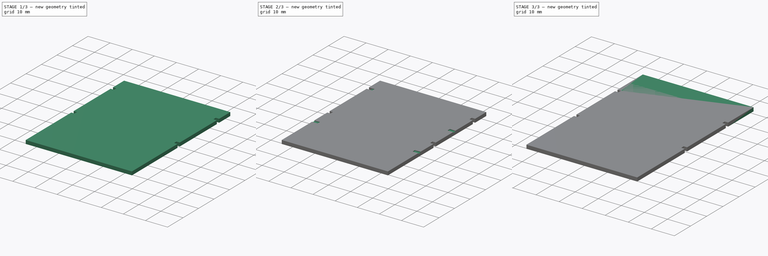
[diagram: build sequence overview — one tinted view per stage of 3, left to right]
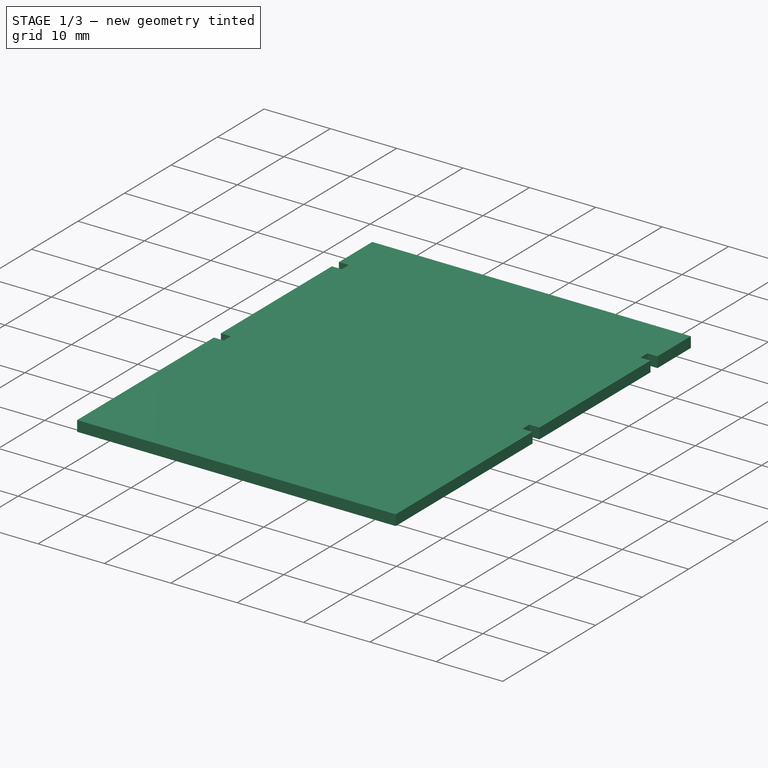
[diagram: stage 1 of 3 — iso view after this stage's code; geometry added in this stage tinted green]
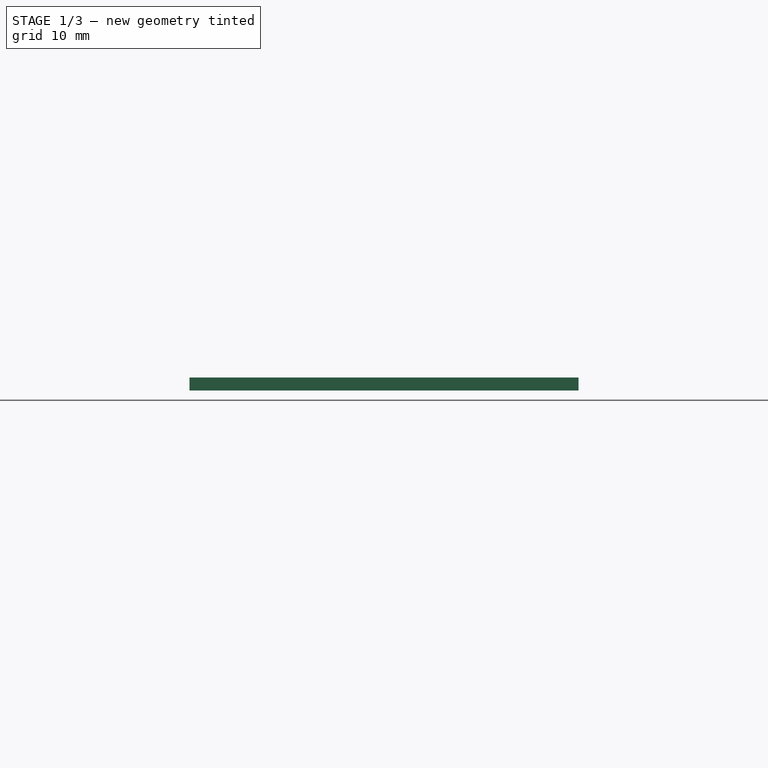
[diagram: stage 1 of 3 — front view after this stage's code; geometry added in this stage tinted green]
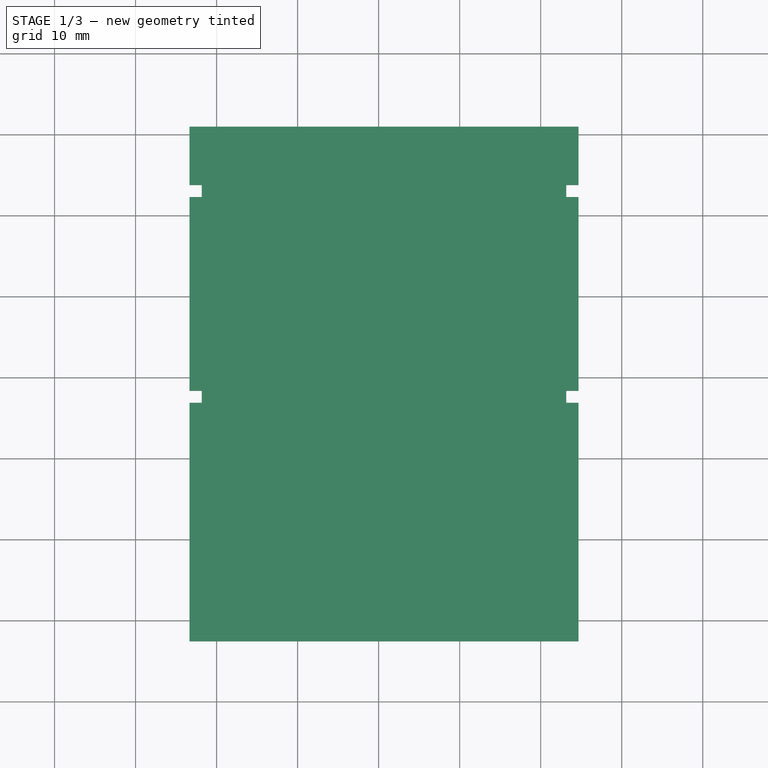
[diagram: stage 1 of 3 — top view after this stage's code; geometry added in this stage tinted green]
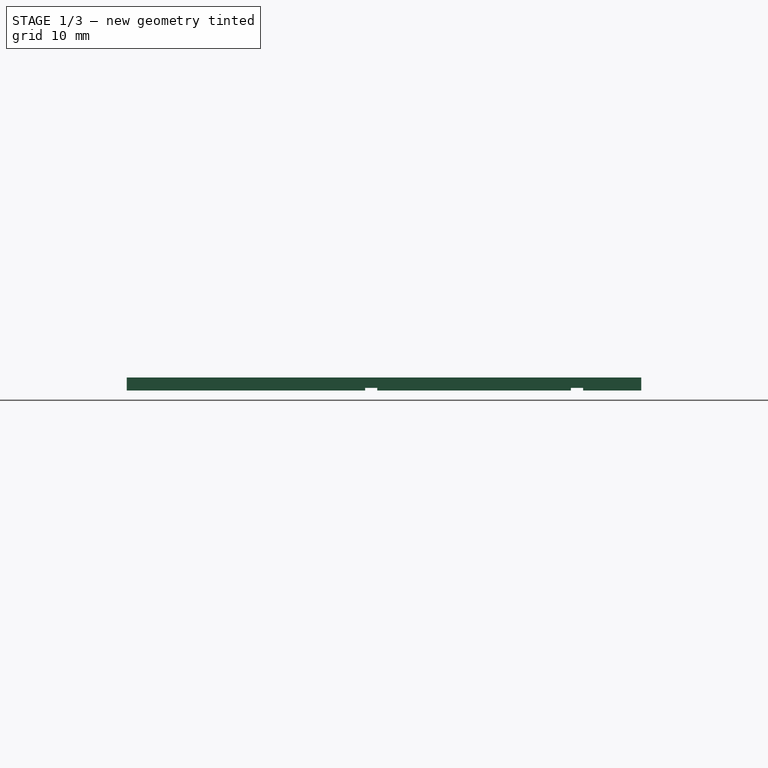
[diagram: stage 1 of 3 — right view after this stage's code; geometry added in this stage tinted green]
FCSTD DOCUMENT  (FreeCAD 0.20R29603 (Git))
Label: cartridge_pcb_spec
License: All rights reserved
LicenseURL: http://en.wikipedia.org/wiki/All_rights_reserved
objects: Sketcher::SketchObject×5, PartDesign::Pocket×3, PartDesign::Pad×2, PartDesign::Body×2, Spreadsheet::Sheet×1
note: 17 computed .brp shape members not serialized (recipe doc carries the construction recipe); baked Part::Feature solids carry a one-line shape summary decoded from their .brp

FEATURE [Spreadsheet::Sheet] Spreadsheet  label="Measurements"
  cells = A1=Alias; B1=Calculated; C1=Actual if available (from source in native units); D1=Source; A2=pcb_height_short; B2(pcb_height_short)==63.5 mm; C2=Inferred: 63.5mm; D2=PCjr Technical Reference, B-22; A3=pcb_height_long; B3(pcb_height_long)==72 mm; C3=Actual: 72mm; D3=PCjr Technical Reference, 2-107; A4=pcb_width; B4(pcb_width)==48 mm; C4=Actual: 48mm; D4=PCjr Technical Reference, 2-107; A6=pcb_bottom_left_datum_x; B6(pcb_bottom_left_datum_x)==2.1 "; C6=Actual: 2.1" (based on C10 = 2.1"); D6=PCjr Technical Reference, B-22; A7=pcb_bottom_left_datum_y; B7(pcb_bottom_left_datum_y)==0.1 "; C7=Inferred: 0.1" (based on the grid); D7=PCjr Technical Reference, B-22; A9=pcb_cutout_y; B9(pcb_cutout_y)==1.5 mm; C9=Inferred (1.5mm); D9=Physical Measurements; A10=pcb_cutout_x; B10(pcb_cutout_x)==1.5 mm; C10=Inferred (1.5mm); D10=Physical Measurements; A12=pcb_lower_cutout_datum_y; B12(pcb_lower_cutout_datum_y)==1.1 "; C12=Actual: 1.1" (based on B10 vertically); D12=PCjr Technical Reference, B-22; A13=pcb_upper_cutout_datum_y; B13(pcb_upper_cutout_datum_y)==2.1 "; C13=Actual: 2.1" (based on C10 vertically); D13=PCjr Technical Reference, B-22; A15=pcb_thickness; B15(pcb_thickness)==1.6 mm; C15=Inferred (1.6mm); D15=Industry standard; A17=top_keepout_width; B17(top_keepout_width)==0.1 "; C17=Inferred (.1"); D17=Physical Measurements; A18=top_keepout_front_y; B18(top_keepout_front_y)==0.8 "; C18=Inferred (.8"); D18=Physical Measurements; A20=bottom_long_keepout_length; B20(bottom_long_keepout_length)==0.2 "; C20=Inferred (.2"); D20=Physical Measurements
FEATURE [Sketcher::SketchObject] Sketch  label="Reference_Short_PCB"
  FullyConstrained = true
  MapMode = 5
  Support = -> [XY_Plane]
  expr: Constraints[0] = <<Measurements>>.pcb_bottom_left_datum_x
  expr: Constraints[1] = <<Measurements>>.pcb_bottom_left_datum_y
  expr: Constraints[32] = <<Measurements>>.pcb_cutout_y
  expr: Constraints[3] = <<Measurements>>.pcb_height_short
  expr: Constraints[4] = <<Measurements>>.pcb_lower_cutout_datum_y
  expr: Constraints[59] = <<Measurements>>.pcb_cutout_y
  expr: Constraints[6] = <<Measurements>>.pcb_upper_cutout_datum_y
  expr: Constraints[89] = <<Measurements>>.pcb_width
  sketch-geometry (42):
    g0: GeomPoint X=-53.34 Y=-2.54 Z=0
    g1: GeomPoint X=-53.34 Y=60.96 Z=0
    g2: GeomPoint X=0 Y=27.94 Z=0
    g3: GeomPoint X=0 Y=53.34 Z=0
    g4: LineSegment StartX=-51.84 StartY=27.3187 StartZ=0 EndX=-51.84 EndY=27.94 EndZ=0
    g5: LineSegment StartX=-51.84 StartY=27.94 StartZ=0 EndX=-52.2793 EndY=28.3793 EndZ=0
    g6: LineSegment StartX=-52.2793 StartY=28.3793 StartZ=0 EndX=-52.9007 EndY=28.3793 EndZ=0
    g7: LineSegment StartX=-52.9007 StartY=28.3793 StartZ=0 EndX=-53.34 EndY=27.94 EndZ=0
    g8: LineSegment StartX=-53.34 StartY=27.94 StartZ=0 EndX=-53.34 EndY=27.3187 EndZ=0
    g9: LineSegment StartX=-53.34 StartY=27.3187 StartZ=0 EndX=-52.9007 EndY=26.8793 EndZ=0
    g10: LineSegment StartX=-52.9007 StartY=26.8793 StartZ=0 EndX=-52.2793 EndY=26.8793 EndZ=0
    g11: LineSegment StartX=-52.2793 StartY=26.8793 StartZ=0 EndX=-51.84 EndY=27.3187 EndZ=0
    g12: Circle CenterX=-52.59 CenterY=27.6293 CenterZ=0 NormalX=0 NormalY=0 NormalZ=1 AngleXU=0 Radius=0.811794
    g13: LineSegment StartX=-51.84 StartY=52.7187 StartZ=0 EndX=-51.84 EndY=53.34 EndZ=0
    g14: LineSegment StartX=-51.84 StartY=53.34 StartZ=0 EndX=-52.2793 EndY=53.7793 EndZ=0
    g15: LineSegment StartX=-52.2793 StartY=53.7793 StartZ=0 EndX=-52.9007 EndY=53.7793 EndZ=0
    g16: LineSegment StartX=-52.9007 StartY=53.7793 StartZ=0 EndX=-53.34 EndY=53.34 EndZ=0
    g17: LineSegment StartX=-53.34 StartY=53.34 StartZ=0 EndX=-53.34 EndY=52.7187 EndZ=0
    g18: LineSegment StartX=-53.34 StartY=52.7187 StartZ=0 EndX=-52.9007 EndY=52.2793 EndZ=0
    g19: LineSegment StartX=-52.9007 StartY=52.2793 StartZ=0 EndX=-52.2793 EndY=52.2793 EndZ=0
    g20: LineSegment StartX=-52.2793 StartY=52.2793 StartZ=0 EndX=-51.84 EndY=52.7187 EndZ=0
    g21: Circle CenterX=-52.59 CenterY=53.0293 CenterZ=0 NormalX=0 NormalY=0 NormalZ=1 AngleXU=0 Radius=0.811794
    g22: LineSegment StartX=-53.34 StartY=-2.54 StartZ=0 EndX=-53.34 EndY=26.8793 EndZ=0
    g23: LineSegment StartX=-53.34 StartY=26.8793 StartZ=0 EndX=-51.84 EndY=26.8793 EndZ=0
    g24: LineSegment StartX=-51.84 StartY=26.8793 StartZ=0 EndX=-51.84 EndY=28.3793 EndZ=0
    g25: LineSegment StartX=-51.84 StartY=28.3793 StartZ=0 EndX=-53.34 EndY=28.3793 EndZ=0
    g26: LineSegment StartX=-53.34 StartY=28.3793 StartZ=0 EndX=-53.34 EndY=52.2793 EndZ=0
    g27: LineSegment StartX=-53.34 StartY=52.2793 StartZ=0 EndX=-51.84 EndY=52.2793 EndZ=0
    g28: LineSegment StartX=-51.84 StartY=52.2793 StartZ=0 EndX=-51.84 EndY=53.7793 EndZ=0
    g29: LineSegment StartX=-51.84 StartY=53.7793 StartZ=0 EndX=-53.34 EndY=53.7793 EndZ=0
    g30: LineSegment StartX=-53.34 StartY=53.7793 StartZ=0 EndX=-53.34 EndY=60.96 EndZ=0
    g31: LineSegment StartX=-53.34 StartY=-2.54 StartZ=0 EndX=-5.34 EndY=-2.54 EndZ=0
    g32: LineSegment StartX=-53.34 StartY=60.96 StartZ=0 EndX=-5.34 EndY=60.96 EndZ=0
    g33: LineSegment StartX=-5.34 StartY=-2.54 StartZ=0 EndX=-5.34 EndY=26.8793 EndZ=0
    g34: LineSegment StartX=-5.34 StartY=26.8793 StartZ=0 EndX=-6.84 EndY=26.8793 EndZ=0
    g35: LineSegment StartX=-6.84 StartY=26.8793 StartZ=0 EndX=-6.84 EndY=28.3793 EndZ=0
    g36: LineSegment StartX=-6.84 StartY=28.3793 StartZ=0 EndX=-5.34 EndY=28.3793 EndZ=0
    g37: LineSegment StartX=-5.34 StartY=28.3793 StartZ=0 EndX=-5.34 EndY=52.2793 EndZ=0
    g38: LineSegment StartX=-5.34 StartY=52.2793 StartZ=0 EndX=-6.84 EndY=52.2793 EndZ=0
    g39: LineSegment StartX=-6.84 StartY=52.2793 StartZ=0 EndX=-6.84 EndY=53.7793 EndZ=0
    g40: LineSegment StartX=-6.84 StartY=53.7793 StartZ=0 EndX=-5.34 EndY=53.7793 EndZ=0
    g41: LineSegment StartX=-5.34 StartY=53.7793 StartZ=0 EndX=-5.34 EndY=60.96 EndZ=0
  constraints (108):
    c: DistanceX(g0,g-1) = 53.34
    c: DistanceY(g0,g-1) = 2.54
    c: Vertical(g1,g0)
    c: DistanceY(g0,g1) = 63.5
    c: DistanceY(g-1,g2) = 27.94
    c: Vertical(g-1,g2)
    c: DistanceY(g-1,g3) = 53.34
    c: Vertical(g3,g-1)
    c: Coincident(g4,g5)
    c: Coincident(g5,g6)
    c: Coincident(g6,g7)
    c: Coincident(g7,g8)
    c: Coincident(g8,g9)
    c: Coincident(g9,g10)
    c: Coincident(g10,g11)
    c: Coincident(g11,g4)
    c: Equal(g4, g5-g11) x7
    c: PointOnObject(g4,g12)
    c: PointOnObject(g5,g12)
    c: PointOnObject(g6,g12)
    c: PointOnObject(g7,g12)
    c: PointOnObject(g8,g12)
    c: PointOnObject(g9,g12)
    c: PointOnObject(g10,g12)
    c: PointOnObject(g11,g12)
    c: Horizontal(g6)
    c: DistanceY(g9,g6) = 1.5
    c: Vertical(g0,g7)
    c: Horizontal(g7,g2)
    c: Coincident(g13,g14)
    c: Coincident(g14,g15)
    c: Coincident(g15,g16)
    c: Coincident(g16,g17)
    c: Coincident(g17,g18)
    c: Coincident(g18,g19)
    c: Coincident(g19,g20)
    c: Coincident(g20,g13)
    c: Equal(g13, g14-g20) x7
    c: PointOnObject(g13,g21)
    c: PointOnObject(g14,g21)
    c: PointOnObject(g15,g21)
    c: PointOnObject(g16,g21)
    c: PointOnObject(g17,g21)
    c: PointOnObject(g18,g21)
    c: PointOnObject(g19,g21)
    c: PointOnObject(g20,g21)
    c: Horizontal(g15)
    c: DistanceY(g18,g15) = 1.5
    c: Vertical(g16,g0)
    c: Coincident(g22,g0)
    c: Vertical(g22)
    c: Coincident(g23,g22)
    c: Horizontal(g23)
    c: Coincident(g24,g23)
    c: Vertical(g24)
    c: Coincident(g25,g24)
    c: Horizontal(g25)
    c: Coincident(g26,g25)
    c: Vertical(g26)
    c: Coincident(g27,g26)
    c: Horizontal(g27)
    c: Coincident(g28,g27)
    c: Vertical(g28)
    c: Coincident(g29,g28)
    c: Horizontal(g29)
    c: Coincident(g30,g29)
    c: Coincident(g30,g1)
    c: Vertical(g30)
    c: Horizontal(g22,g9)
    c: Vertical(g23,g4)
    c: Horizontal(g25,g6)
    c: Vertical(g25,g22)
    c: Horizontal(g26,g18)
    c: Vertical(g27,g13)
    c: Horizontal(g29,g15)
    c: Coincident(g31,g22)
    c: Horizontal(g31)
    c: DistanceX(g31,g31) = 48
    c: Coincident(g32,g30)
    c: Horizontal(g32)
    c: Coincident(g33,g31)
    c: Vertical(g33)
    c: Coincident(g34,g33)
    c: Horizontal(g34)
    c: Coincident(g35,g34)
    c: Vertical(g35)
    c: Coincident(g36,g35)
    c: Horizontal(g36)
    c: Coincident(g37,g36)
    c: Vertical(g37)
    c: Coincident(g38,g37)
    c: Horizontal(g38)
    c: Coincident(g39,g38)
    c: Vertical(g39)
    c: Coincident(g40,g39)
    c: Horizontal(g40)
    c: Coincident(g41,g40)
    c: Coincident(g41,g32)
    c: Vertical(g41)
    c: Equal(g33,g22)
    c: Equal(g34,g23)
    c: Equal(g35,g24)
    c: Vertical(g36,g33)
    c: Equal(g37,g26)
    c: Equal(g38,g27)
    c: Vertical(g40,g37)
    c: Equal(g39,g28)
    c: Horizontal(g3,g16)
FEATURE [Sketcher::SketchObject] Sketch001  label="Reference_Long_PCB"
  FullyConstrained = true
  MapMode = 5
  Support = -> [XY_Plane001]
  expr: Constraints[0] = <<Measurements>>.pcb_bottom_left_datum_x
  expr: Constraints[1] = <<Measurements>>.pcb_bottom_left_datum_y
  expr: Constraints[32] = <<Measurements>>.pcb_cutout_y
  expr: Constraints[3] = <<Measurements>>.pcb_height_long
  expr: Constraints[59] = <<Measurements>>.pcb_cutout_y
  expr: Constraints[6] = <<Measurements>>.pcb_lower_cutout_datum_y
  expr: Constraints[7] = <<Measurements>>.pcb_upper_cutout_datum_y
  expr: Constraints[90] = <<Measurements>>.pcb_width
  sketch-geometry (42):
    g0: GeomPoint X=-53.34 Y=-2.54 Z=0
    g1: GeomPoint X=-53.34 Y=69.46 Z=0
    g2: GeomPoint X=0 Y=27.94 Z=0
    g3: GeomPoint X=0 Y=53.34 Z=0
    g4: LineSegment StartX=-51.84 StartY=27.3187 StartZ=0 EndX=-51.84 EndY=27.94 EndZ=0
    g5: LineSegment StartX=-51.84 StartY=27.94 StartZ=0 EndX=-52.2793 EndY=28.3793 EndZ=0
    g6: LineSegment StartX=-52.2793 StartY=28.3793 StartZ=0 EndX=-52.9007 EndY=28.3793 EndZ=0
    g7: LineSegment StartX=-52.9007 StartY=28.3793 StartZ=0 EndX=-53.34 EndY=27.94 EndZ=0
    g8: LineSegment StartX=-53.34 StartY=27.94 StartZ=0 EndX=-53.34 EndY=27.3187 EndZ=0
    g9: LineSegment StartX=-53.34 StartY=27.3187 StartZ=0 EndX=-52.9007 EndY=26.8793 EndZ=0
    g10: LineSegment StartX=-52.9007 StartY=26.8793 StartZ=0 EndX=-52.2793 EndY=26.8793 EndZ=0
    g11: LineSegment StartX=-52.2793 StartY=26.8793 StartZ=0 EndX=-51.84 EndY=27.3187 EndZ=0
    g12: Circle CenterX=-52.59 CenterY=27.6293 CenterZ=0 NormalX=0 NormalY=0 NormalZ=1 AngleXU=0 Radius=0.811794
    g13: LineSegment StartX=-51.84 StartY=52.7187 StartZ=0 EndX=-51.84 EndY=53.34 EndZ=0
    g14: LineSegment StartX=-51.84 StartY=53.34 StartZ=0 EndX=-52.2793 EndY=53.7793 EndZ=0
    g15: LineSegment StartX=-52.2793 StartY=53.7793 StartZ=0 EndX=-52.9007 EndY=53.7793 EndZ=0
    g16: LineSegment StartX=-52.9007 StartY=53.7793 StartZ=0 EndX=-53.34 EndY=53.34 EndZ=0
    g17: LineSegment StartX=-53.34 StartY=53.34 StartZ=0 EndX=-53.34 EndY=52.7187 EndZ=0
    g18: LineSegment StartX=-53.34 StartY=52.7187 StartZ=0 EndX=-52.9007 EndY=52.2793 EndZ=0
    g19: LineSegment StartX=-52.9007 StartY=52.2793 StartZ=0 EndX=-52.2793 EndY=52.2793 EndZ=0
    g20: LineSegment StartX=-52.2793 StartY=52.2793 StartZ=0 EndX=-51.84 EndY=52.7187 EndZ=0
    g21: Circle CenterX=-52.59 CenterY=53.0293 CenterZ=0 NormalX=0 NormalY=0 NormalZ=1 AngleXU=0 Radius=0.811794
    g22: LineSegment StartX=-53.34 StartY=-2.54 StartZ=0 EndX=-53.34 EndY=26.8793 EndZ=0
    g23: LineSegment StartX=-53.34 StartY=26.8793 StartZ=0 EndX=-51.84 EndY=26.8793 EndZ=0
    g24: LineSegment StartX=-51.84 StartY=26.8793 StartZ=0 EndX=-51.84 EndY=28.3793 EndZ=0
    g25: LineSegment StartX=-51.84 StartY=28.3793 StartZ=0 EndX=-53.34 EndY=28.3793 EndZ=0
    g26: LineSegment StartX=-53.34 StartY=28.3793 StartZ=0 EndX=-53.34 EndY=52.2793 EndZ=0
    g27: LineSegment StartX=-53.34 StartY=52.2793 StartZ=0 EndX=-51.84 EndY=52.2793 EndZ=0
    g28: LineSegment StartX=-51.84 StartY=52.2793 StartZ=0 EndX=-51.84 EndY=53.7793 EndZ=0
    g29: LineSegment StartX=-51.84 StartY=53.7793 StartZ=0 EndX=-53.34 EndY=53.7793 EndZ=0
    g30: LineSegment StartX=-53.34 StartY=53.7793 StartZ=0 EndX=-53.34 EndY=69.46 EndZ=0
    g31: LineSegment StartX=-53.34 StartY=-2.54 StartZ=0 EndX=-5.34 EndY=-2.54 EndZ=0
    g32: LineSegment StartX=-53.34 StartY=69.46 StartZ=0 EndX=-5.34 EndY=69.46 EndZ=0
    g33: LineSegment StartX=-5.34 StartY=-2.54 StartZ=0 EndX=-5.34 EndY=26.8793 EndZ=0
    g34: LineSegment StartX=-5.34 StartY=26.8793 StartZ=0 EndX=-6.84 EndY=26.8793 EndZ=0
    g35: LineSegment StartX=-6.84 StartY=26.8793 StartZ=0 EndX=-6.84 EndY=28.3793 EndZ=0
    g36: LineSegment StartX=-6.84 StartY=28.3793 StartZ=0 EndX=-5.34 EndY=28.3793 EndZ=0
    g37: LineSegment StartX=-5.34 StartY=28.3793 StartZ=0 EndX=-5.34 EndY=52.2793 EndZ=0
    g38: LineSegment StartX=-5.34 StartY=52.2793 StartZ=0 EndX=-6.84 EndY=52.2793 EndZ=0
    g39: LineSegment StartX=-6.84 StartY=52.2793 StartZ=0 EndX=-6.84 EndY=53.7793 EndZ=0
    g40: LineSegment StartX=-6.84 StartY=53.7793 StartZ=0 EndX=-5.34 EndY=53.7793 EndZ=0
    g41: LineSegment StartX=-5.34 StartY=53.7793 StartZ=0 EndX=-5.34 EndY=69.46 EndZ=0
  constraints (108):
    c: DistanceX(g0,g-1) = 53.34
    c: DistanceY(g0,g-1) = 2.54
    c: Vertical(g1,g0)
    c: DistanceY(g0,g1) = 72
    c: Vertical(g2,g-1)
    c: Vertical(g3,g-1)
    c: DistanceY(g-1,g2) = 27.94
    c: DistanceY(g-1,g3) = 53.34
    c: Coincident(g4,g5)
    c: Coincident(g5,g6)
    c: Coincident(g6,g7)
    c: Coincident(g7,g8)
    c: Coincident(g8,g9)
    c: Coincident(g9,g10)
    c: Coincident(g10,g11)
    c: Coincident(g11,g4)
    c: Equal(g4, g5-g11) x7
    c: PointOnObject(g4,g12)
    c: PointOnObject(g5,g12)
    c: PointOnObject(g6,g12)
    c: PointOnObject(g7,g12)
    c: PointOnObject(g8,g12)
    c: PointOnObject(g9,g12)
    c: PointOnObject(g10,g12)
    c: PointOnObject(g11,g12)
    c: Horizontal(g6)
    c: DistanceY(g9,g6) = 1.5
    c: Horizontal(g7,g2)
    c: Vertical(g7,g0)
    c: Coincident(g13,g14)
    c: Coincident(g14,g15)
    c: Coincident(g15,g16)
    c: Coincident(g16,g17)
    c: Coincident(g17,g18)
    c: Coincident(g18,g19)
    c: Coincident(g19,g20)
    c: Coincident(g20,g13)
    c: Equal(g13, g14-g20) x7
    c: PointOnObject(g13,g21)
    c: PointOnObject(g14,g21)
    c: PointOnObject(g15,g21)
    c: PointOnObject(g16,g21)
    c: PointOnObject(g17,g21)
    c: PointOnObject(g18,g21)
    c: PointOnObject(g19,g21)
    c: PointOnObject(g20,g21)
    c: Horizontal(g15)
    c: DistanceY(g18,g15) = 1.5
    c: Horizontal(g16,g3)
    c: Vertical(g16,g0)
    c: Coincident(g22,g0)
    c: Vertical(g22)
    c: Coincident(g23,g22)
    c: Horizontal(g23)
    c: Coincident(g24,g23)
    c: Vertical(g24)
    c: Coincident(g25,g24)
    c: Horizontal(g25)
    c: Coincident(g26,g25)
    c: Vertical(g26)
    c: Coincident(g27,g26)
    c: Horizontal(g27)
    c: Coincident(g28,g27)
    c: Vertical(g28)
    c: Coincident(g29,g28)
    c: Horizontal(g29)
    c: Coincident(g30,g29)
    c: Coincident(g30,g1)
    c: Vertical(g30)
    c: Horizontal(g22,g9)
    c: Vertical(g23,g4)
    c: Horizontal(g25,g6)
    c: Vertical(g25,g22)
    c: Horizontal(g26,g18)
    c: Vertical(g27,g13)
    c: Horizontal(g29,g15)
    c: Coincident(g31,g22)
    c: Horizontal(g31)
    c: DistanceX(g31,g31) = 48
    c: Coincident(g32,g30)
    c: Horizontal(g32)
    c: Coincident(g33,g31)
    c: Vertical(g33)
    c: Coincident(g34,g33)
    c: Horizontal(g34)
    c: Coincident(g35,g34)
    c: Vertical(g35)
    c: Coincident(g36,g35)
    c: Horizontal(g36)
    c: Coincident(g37,g36)
    c: Vertical(g37)
    c: Coincident(g38,g37)
    c: Horizontal(g38)
    c: Coincident(g39,g38)
    c: Vertical(g39)
    c: Coincident(g40,g39)
    c: Horizontal(g40)
    c: Coincident(g41,g40)
    c: Coincident(g41,g32)
    c: Vertical(g41)
    c: Equal(g33,g22)
    c: Equal(g34,g23)
    c: Equal(g35,g24)
    c: Vertical(g36,g33)
    c: Equal(g37,g26)
    c: Equal(g38,g27)
    c: Equal(g39,g28)
    c: Vertical(g40,g37)
FEATURE [PartDesign::Pad] Pad  label="Short_PCB_Pad"
  Direction = (0,0,1)
  Length = 1.6
  Length2 = 10
  Profile = -> Sketch
  ReferenceAxis = -> Sketch [N_Axis]
  Type = 0
  expr: Length = <<Measurements>>.pcb_thickness
FEATURE [Sketcher::SketchObject] Sketch002  label="Bottom_Short_Keepouts"
  ExternalGeometry = -> [Pad]
  FullyConstrained = true
  MapMode = 5
  Placement = pos=(0,0,0) rot=(1,0,0;3.14159rad)
  Support = -> [Pad]
  sketch-geometry (8):
    g0: LineSegment StartX=-51.84 StartY=-53.7793 StartZ=0 EndX=-6.84 EndY=-53.7793 EndZ=0
    g1: LineSegment StartX=-6.84 StartY=-53.7793 StartZ=0 EndX=-6.84 EndY=-52.2793 EndZ=0
    g2: LineSegment StartX=-6.84 StartY=-52.2793 StartZ=0 EndX=-51.84 EndY=-52.2793 EndZ=0
    g3: LineSegment StartX=-51.84 StartY=-53.7793 StartZ=0 EndX=-51.84 EndY=-52.2793 EndZ=0
    g4: LineSegment StartX=-51.84 StartY=-26.8793 StartZ=0 EndX=-51.84 EndY=-28.3793 EndZ=0
    g5: LineSegment StartX=-51.84 StartY=-28.3793 StartZ=0 EndX=-6.84 EndY=-28.3793 EndZ=0
    g6: LineSegment StartX=-6.84 StartY=-28.3793 StartZ=0 EndX=-6.84 EndY=-26.8793 EndZ=0
    g7: LineSegment StartX=-6.84 StartY=-26.8793 StartZ=0 EndX=-51.84 EndY=-26.8793 EndZ=0
  constraints (16):
    c: Coincident(g0,g-9)
    c: Coincident(g0,g-8)
    c: Coincident(g1,g0)
    c: Coincident(g1,g-7)
    c: Coincident(g2,g1)
    c: Coincident(g2,g-10)
    c: Coincident(g3,g0)
    c: Coincident(g3,g2)
    c: Coincident(g4,g-3)
    c: Coincident(g4,g-4)
    c: Coincident(g5,g4)
    c: Coincident(g5,g-6)
    c: Coincident(g6,g5)
    c: Coincident(g6,g-5)
    c: Coincident(g7,g6)
    c: Coincident(g7,g4)
FEATURE [PartDesign::Pocket] Pocket  label="Bottom_Short_Keepouts_Pocket"
  BaseFeature = -> Pad
  Direction = (0,0,1)
  Length = 0.3175
  Length2 = 5
  Profile = -> Sketch002
  ReferenceAxis = -> Sketch002 [N_Axis]
  Type = 0
  expr: Length = 0.0125 "
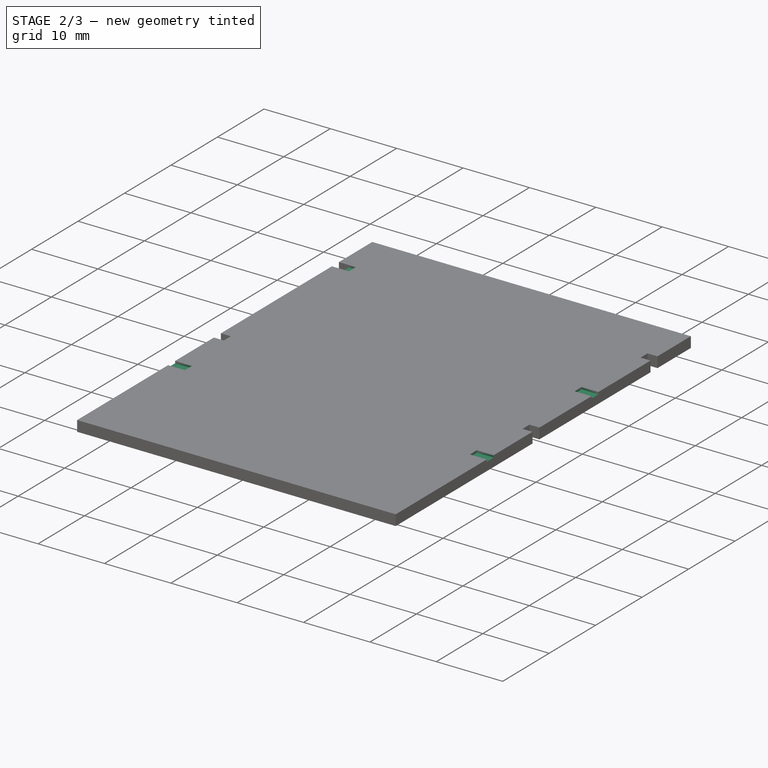
[diagram: stage 2 of 3 — iso view after this stage's code; geometry added in this stage tinted green]
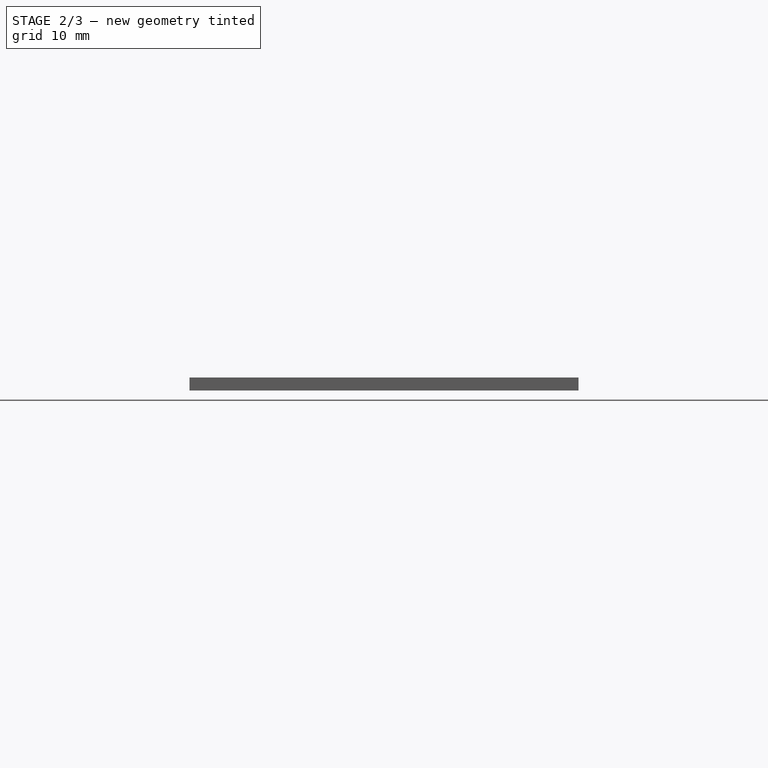
[diagram: stage 2 of 3 — front view after this stage's code; geometry added in this stage tinted green]
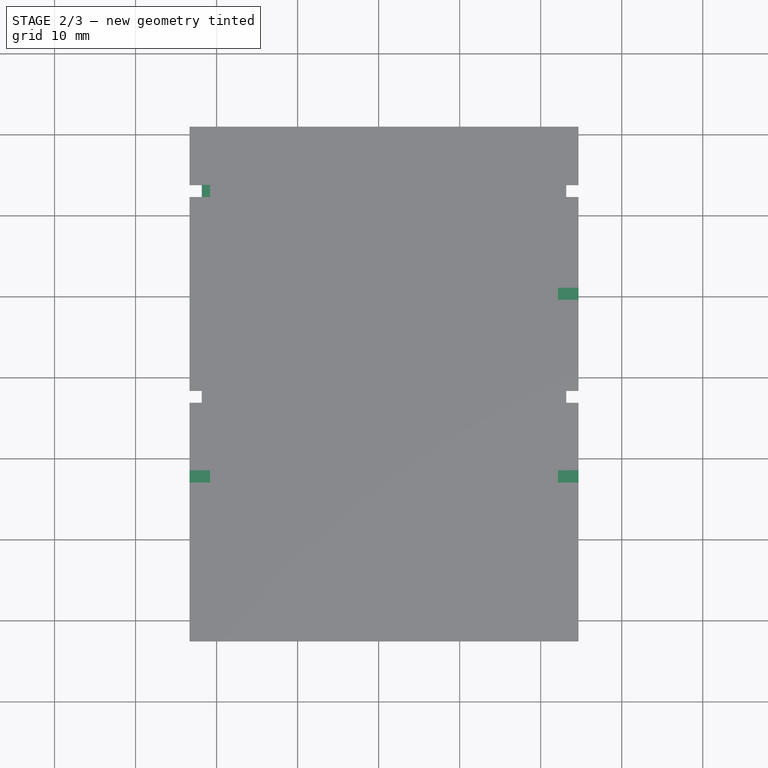
[diagram: stage 2 of 3 — top view after this stage's code; geometry added in this stage tinted green]
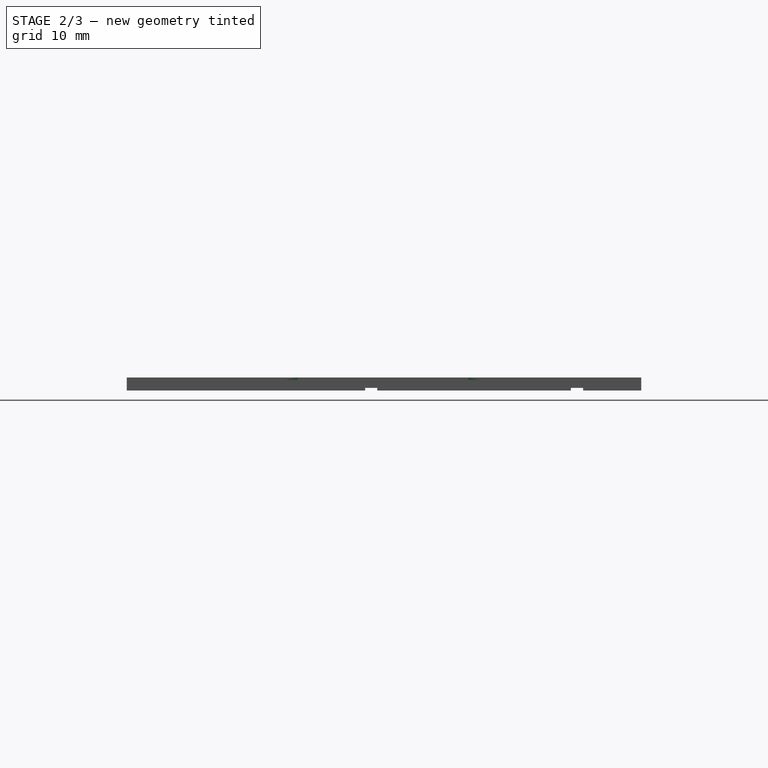
[diagram: stage 2 of 3 — right view after this stage's code; geometry added in this stage tinted green]
FEATURE [PartDesign::Body] Body001  label="Long_PCB"
  Group = -> [Sketch001,Pad001,Sketch003,Pocket001]
  Origin = -> Origin001
  Tip = -> Pocket001
FEATURE [Sketcher::SketchObject] Sketch004  label="Top_Short_Keepouts"
  ExternalGeometry = -> [Pocket]
  FullyConstrained = true
  MapMode = 5
  Placement = pos=(0,0,1.6) rot=(0,0,1;0rad)
  Support = -> [Pocket]
  expr: Constraints[21] = <<Measurements>>.top_keepout_width
  expr: Constraints[40] = <<Measurements>>.top_keepout_width
  expr: Constraints[41] = <<Measurements>>.top_keepout_width
  expr: Constraints[43] = <<Measurements>>.top_keepout_front_y
  expr: Constraints[9] = <<Measurements>>.top_keepout_width
  sketch-geometry (19):
    g0: LineSegment StartX=-51.84 StartY=53.7793 StartZ=0 EndX=-51.84 EndY=52.2793 EndZ=0
    g1: LineSegment StartX=-51.84 StartY=52.2793 StartZ=0 EndX=-50.8 EndY=52.2793 EndZ=0
    g2: LineSegment StartX=-51.84 StartY=53.7793 StartZ=0 EndX=-50.8 EndY=53.7793 EndZ=0
    g3: LineSegment StartX=-50.8 StartY=53.7793 StartZ=0 EndX=-50.8 EndY=52.2793 EndZ=0
    g4: GeomPoint X=-5.34 Y=40.3293 Z=0
    g5: LineSegment StartX=-5.34 StartY=41.0793 StartZ=0 EndX=-5.34 EndY=39.5793 EndZ=0
    g6: LineSegment StartX=-5.34 StartY=41.0793 StartZ=0 EndX=-7.88 EndY=41.0793 EndZ=0
    g7: LineSegment StartX=-5.34 StartY=39.5793 StartZ=0 EndX=-7.88 EndY=39.5793 EndZ=0
    g8: LineSegment StartX=-7.88 StartY=41.0793 StartZ=0 EndX=-7.88 EndY=39.5793 EndZ=0
    g9: LineSegment StartX=-53.34 StartY=18.53 StartZ=0 EndX=-50.8 EndY=18.53 EndZ=0
    g10: LineSegment StartX=-50.8 StartY=18.53 StartZ=0 EndX=-50.8 EndY=17.03 EndZ=0
    g11: LineSegment StartX=-50.8 StartY=17.03 StartZ=0 EndX=-53.34 EndY=17.03 EndZ=0
    g12: LineSegment StartX=-53.34 StartY=17.03 StartZ=0 EndX=-53.34 EndY=18.53 EndZ=0
    g13: LineSegment StartX=-7.88 StartY=18.53 StartZ=0 EndX=-5.34 EndY=18.53 EndZ=0
    g14: LineSegment StartX=-5.34 StartY=18.53 StartZ=0 EndX=-5.34 EndY=17.03 EndZ=0
    g15: LineSegment StartX=-5.34 StartY=17.03 StartZ=0 EndX=-7.88 EndY=17.03 EndZ=0
    g16: LineSegment StartX=-7.88 StartY=17.03 StartZ=0 EndX=-7.88 EndY=18.53 EndZ=0
    g17: GeomPoint X=-53.34 Y=17.78 Z=0
    g18: GeomPoint X=-5.34 Y=17.78 Z=0
  constraints (48):
    c: Coincident(g0,g-3)
    c: Coincident(g0,g-5)
    c: Coincident(g1,g0)
    c: Horizontal(g1)
    c: Coincident(g2,g0)
    c: Horizontal(g2)
    c: Coincident(g3,g2)
    c: Coincident(g3,g1)
    c: Vertical(g3)
    c: DistanceX(g-4,g2) = 2.54
    c: Symmetric(g-6,g-7,g4)
    c: Vertical(g5)
    c: Symmetric(g5,g5,g4)
    c: Coincident(g6,g5)
    c: Horizontal(g6)
    c: Coincident(g7,g5)
    c: Horizontal(g7)
    c: Coincident(g8,g6)
    c: Coincident(g8,g7)
    c: Vertical(g8)
    c: Equal(g8,g3)
    c: DistanceX(g6,g6) = 2.54
    c: Coincident(g9,g10)
    c: Coincident(g10,g11)
    c: Coincident(g11,g12)
    c: Coincident(g12,g9)
    c: Horizontal(g9)
    c: Horizontal(g11)
    c: Vertical(g10)
    c: Vertical(g12)
    c: Coincident(g13,g14)
    c: Coincident(g14,g15)
    c: Coincident(g15,g16)
    c: Coincident(g16,g13)
    c: Horizontal(g13)
    c: Horizontal(g15)
    c: Vertical(g14)
    c: Vertical(g16)
    c: Equal(g3,g10)
    c: Equal(g10,g16)
    c: DistanceX(g9,g9) = 2.54
    c: DistanceX(g13,g13) = 2.54
    c: Vertical(g-8,g17)
    c: DistanceY(g-8,g17) = 20.32
    c: Vertical(g18,g-9)
    c: Horizontal(g18,g17)
    c: Symmetric(g9,g11,g17)
    c: Symmetric(g13,g14,g18)
FEATURE [PartDesign::Pocket] Pocket002  label="Top_Short_Keepouts_Pocket"
  BaseFeature = -> Pocket
  Direction = (0,0,-1)
  Length = 0.3175
  Length2 = 5
  Profile = -> Sketch004
  ReferenceAxis = -> Sketch004 [N_Axis]
  Type = 0
FEATURE [PartDesign::Body] Body  label="Short_PCB"
  Group = -> [Sketch,Pad,Sketch002,Pocket,Sketch004,Pocket002]
  Origin = -> Origin
  Tip = -> Pocket002
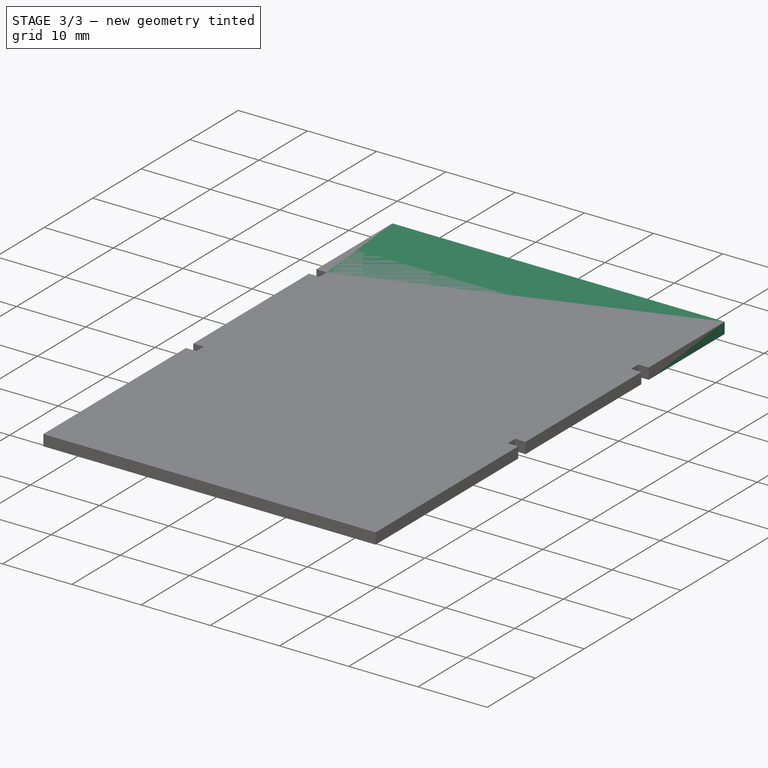
[diagram: stage 3 of 3 — iso view after this stage's code; geometry added in this stage tinted green]
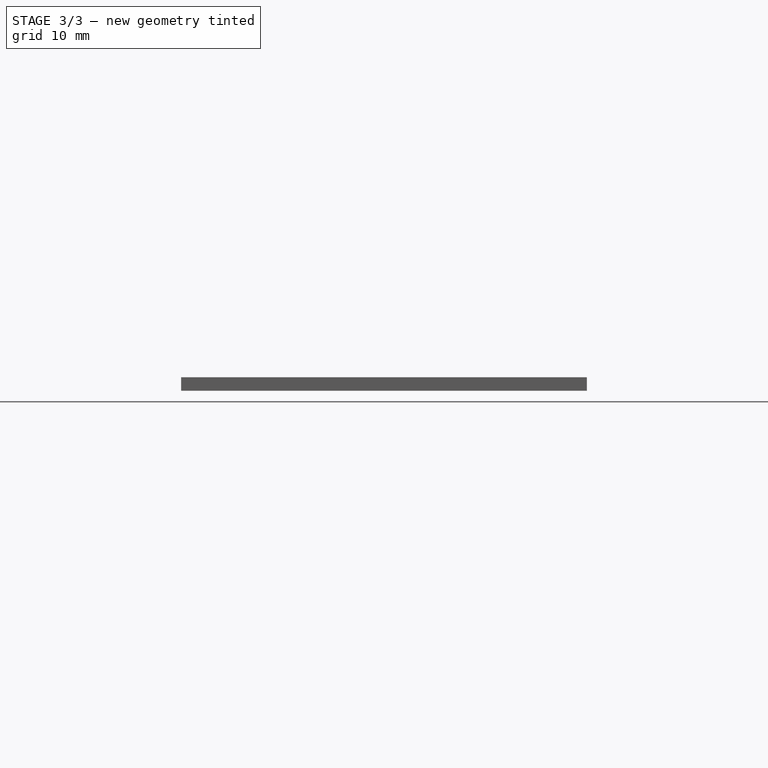
[diagram: stage 3 of 3 — front view after this stage's code; geometry added in this stage tinted green]
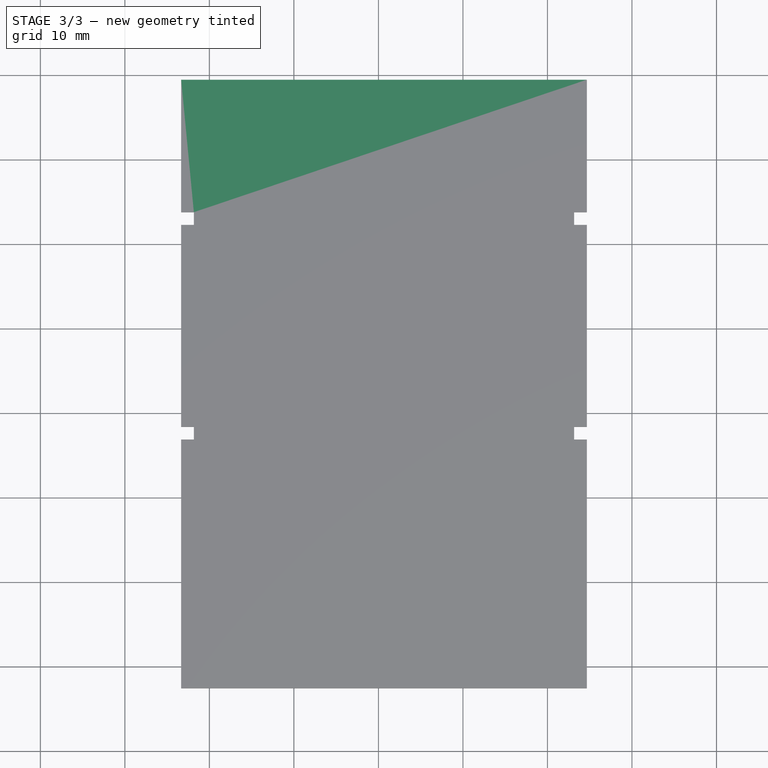
[diagram: stage 3 of 3 — top view after this stage's code; geometry added in this stage tinted green]
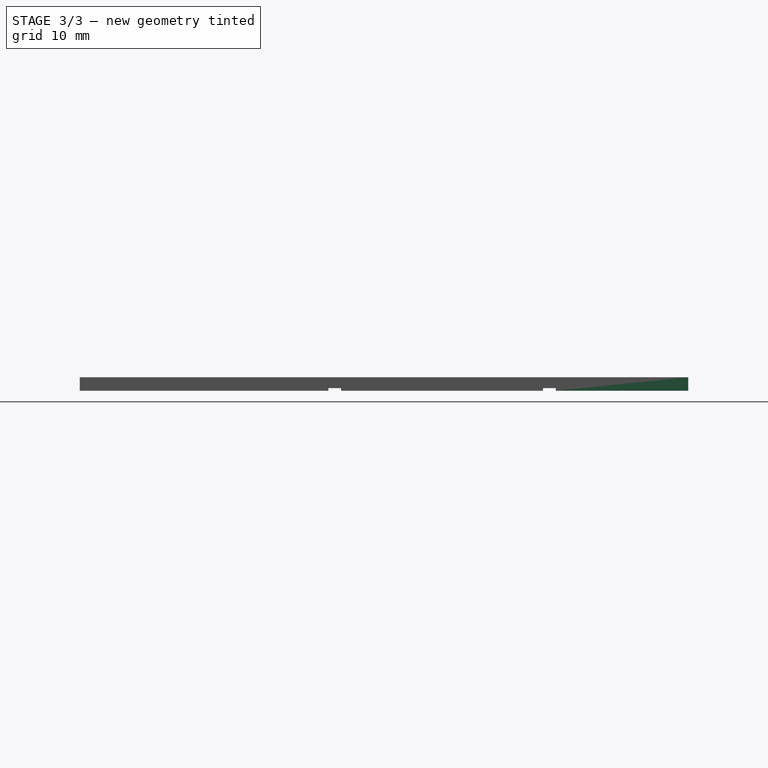
[diagram: stage 3 of 3 — right view after this stage's code; geometry added in this stage tinted green]
FEATURE [PartDesign::Pad] Pad001  label="Long_PCB_Pad"
  Direction = (0,0,1)
  Length = 1.6
  Length2 = 10
  Profile = -> Sketch001
  ReferenceAxis = -> Sketch001 [N_Axis]
  Type = 0
  expr: Length = <<Measurements>>.pcb_thickness
FEATURE [Sketcher::SketchObject] Sketch003  label="Bottom_Long_Keepouts"
  ExternalGeometry = -> [Pad001]
  FullyConstrained = true
  MapMode = 5
  Placement = pos=(0,0,0) rot=(1,0,0;3.14159rad)
  Support = -> [Pad001]
  expr: Constraints[27] = <<Measurements>>.bottom_long_keepout_length
  sketch-geometry (13):
    g0: LineSegment StartX=-51.84 StartY=-52.2793 StartZ=0 EndX=-51.84 EndY=-53.7793 EndZ=0
    g1: LineSegment StartX=-51.84 StartY=-53.7793 StartZ=0 EndX=-6.84 EndY=-53.7793 EndZ=0
    g2: LineSegment StartX=-6.84 StartY=-53.7793 StartZ=0 EndX=-6.84 EndY=-52.2793 EndZ=0
    g3: LineSegment StartX=-6.84 StartY=-52.2793 StartZ=0 EndX=-51.84 EndY=-52.2793 EndZ=0
    g4: LineSegment StartX=-51.84 StartY=-28.3793 StartZ=0 EndX=-6.84 EndY=-28.3793 EndZ=0
    g5: LineSegment StartX=-6.84 StartY=-28.3793 StartZ=0 EndX=-6.84 EndY=-26.8793 EndZ=0
    g6: LineSegment StartX=-6.84 StartY=-26.8793 StartZ=0 EndX=-51.84 EndY=-26.8793 EndZ=0
    g7: LineSegment StartX=-51.84 StartY=-26.8793 StartZ=0 EndX=-51.84 EndY=-28.3793 EndZ=0
    g8: GeomPoint X=-29.34 Y=-69.46 Z=0
    g9: LineSegment StartX=-30.09 StartY=-69.46 StartZ=0 EndX=-28.59 EndY=-69.46 EndZ=0
    g10: LineSegment StartX=-28.59 StartY=-69.46 StartZ=0 EndX=-28.59 EndY=-64.38 EndZ=0
    g11: LineSegment StartX=-28.59 StartY=-64.38 StartZ=0 EndX=-30.09 EndY=-64.38 EndZ=0
    g12: LineSegment StartX=-30.09 StartY=-64.38 StartZ=0 EndX=-30.09 EndY=-69.46 EndZ=0
  constraints (28):
    c: Coincident(g0,g-9)
    c: Coincident(g0,g-10)
    c: Coincident(g1,g0)
    c: Coincident(g1,g-8)
    c: Coincident(g2,g1)
    c: Coincident(g2,g-7)
    c: Coincident(g3,g2)
    c: Coincident(g3,g0)
    c: Coincident(g4,g-4)
    c: Coincident(g4,g-6)
    c: Coincident(g5,g4)
    c: Coincident(g5,g-5)
    c: Coincident(g6,g5)
    c: Coincident(g6,g-3)
    c: Coincident(g7,g6)
    c: Coincident(g7,g4)
    c: Symmetric(g-12,g-11,g8)
    c: Coincident(g9,g10)
    c: Coincident(g10,g11)
    c: Coincident(g11,g12)
    c: Coincident(g12,g9)
    c: Horizontal(g9)
    c: Horizontal(g11)
    c: Vertical(g10)
    c: Vertical(g12)
    c: Equal(g11,g0)
    c: Symmetric(g9,g9,g8)
    c: DistanceY(g12,g12) = 5.08
FEATURE [PartDesign::Pocket] Pocket001  label="Bottom_Long_Keepouts_Pocket"
  BaseFeature = -> Pad001
  Direction = (0,0,1)
  Length = 0.3175
  Length2 = 5
  Profile = -> Sketch003
  ReferenceAxis = -> Sketch003 [N_Axis]
  Type = 0
  expr: Length = 0.0125 "
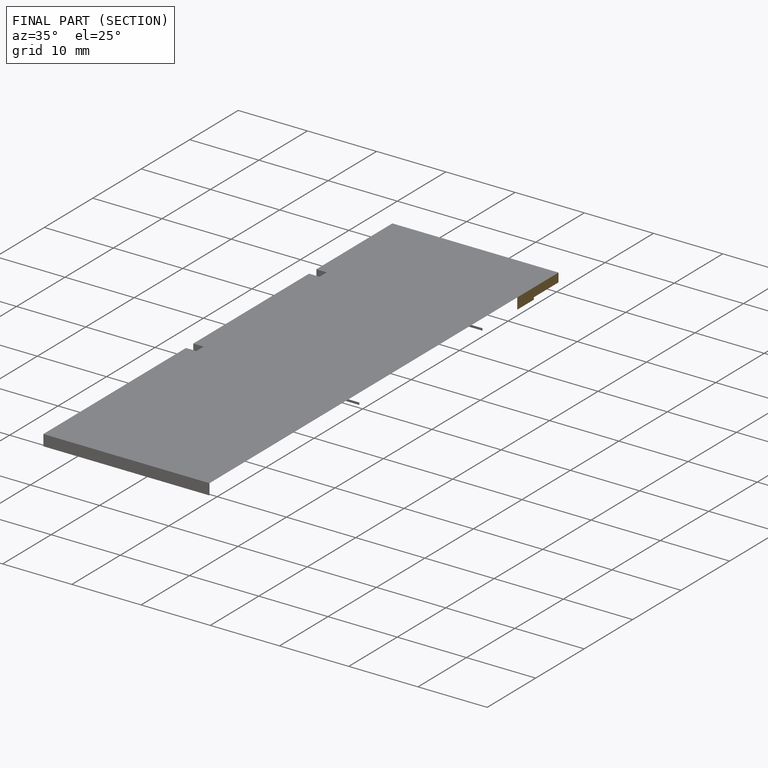
[diagram: finished part — half-section view (interior)]
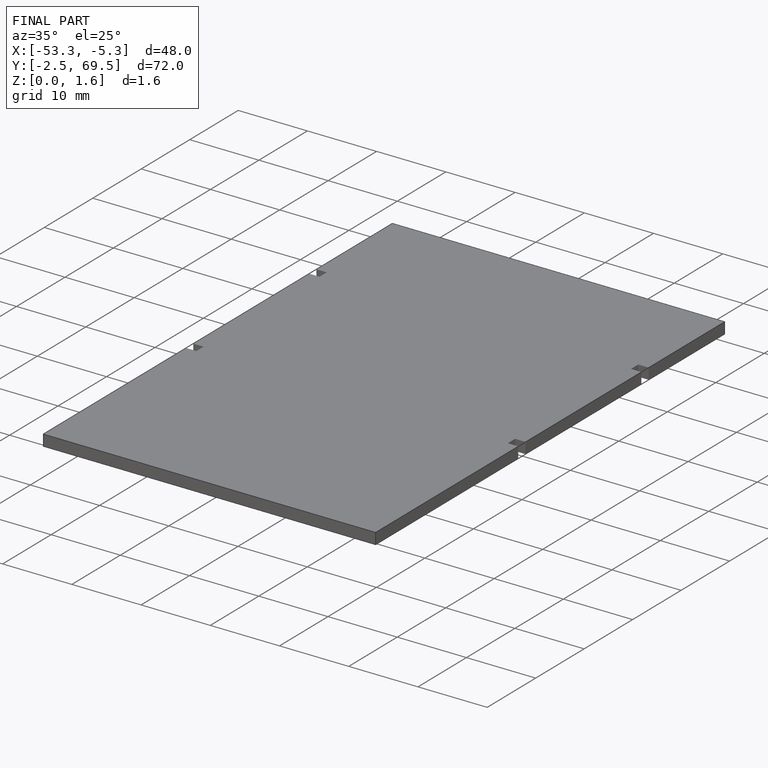
[diagram: finished part — iso view with bounding-box wireframe]
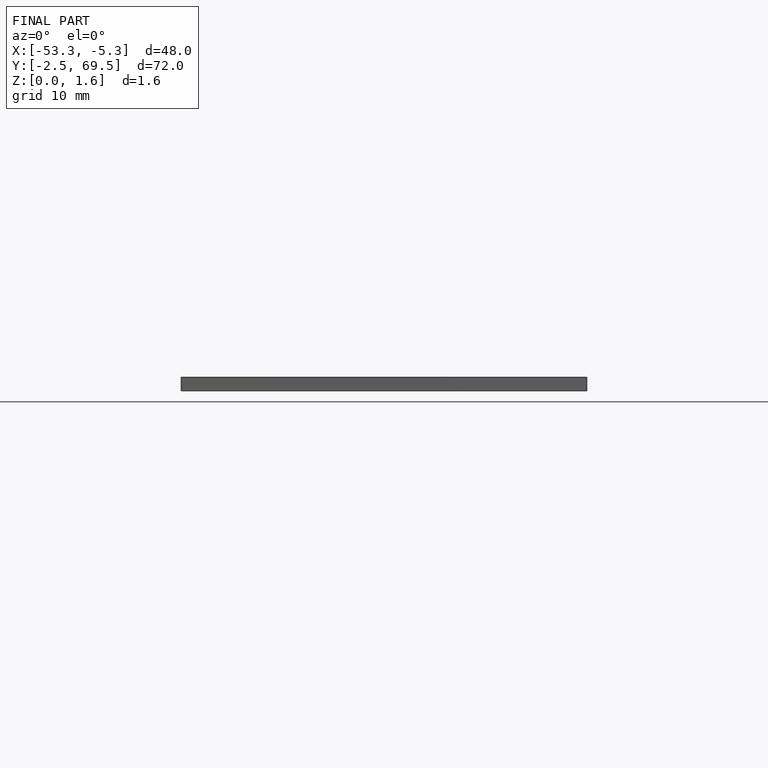
[diagram: finished part — front view with bounding-box wireframe]
